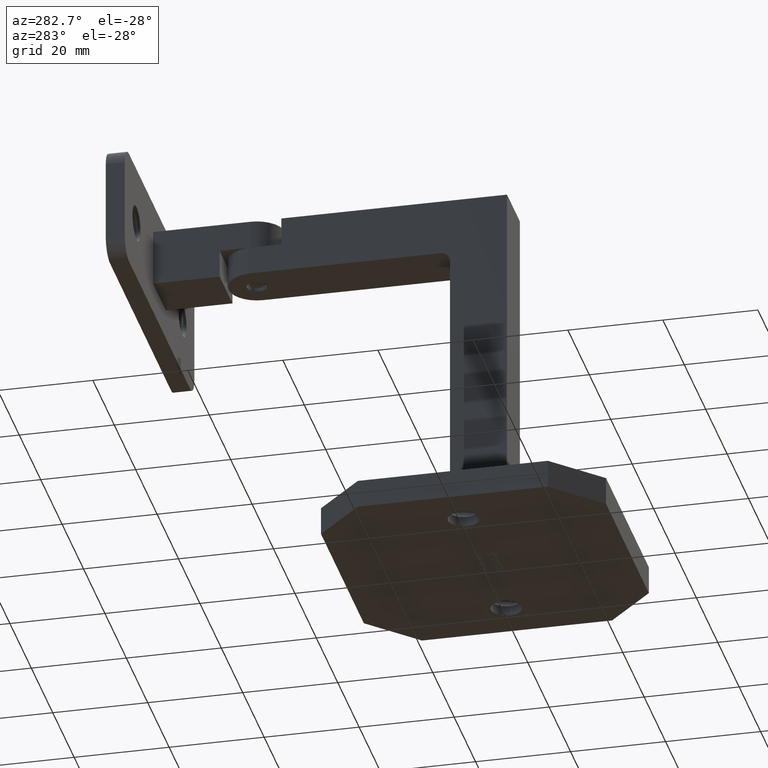
[diagram: clean part render]
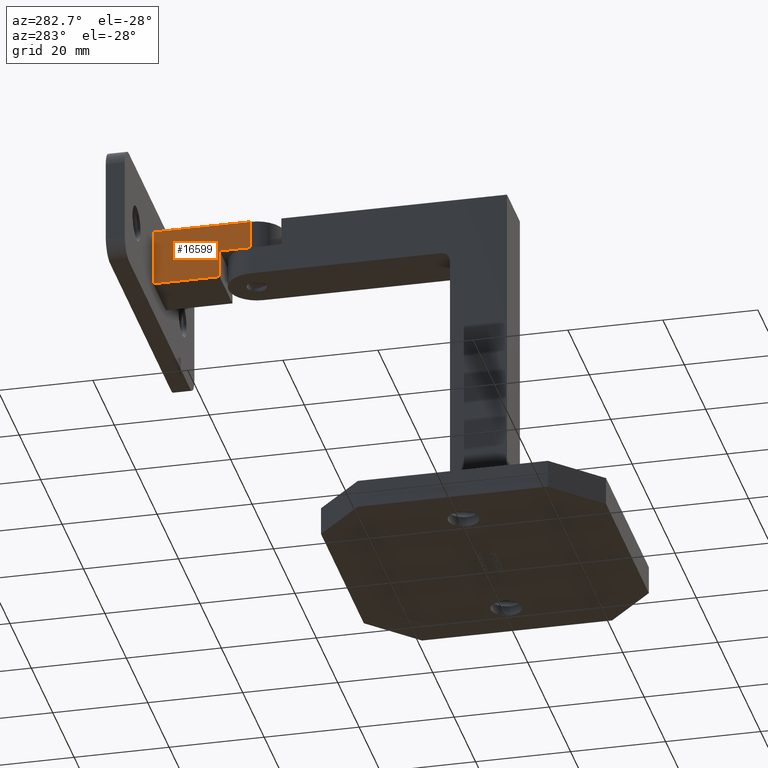
[diagram: same view with one face highlighted and labeled with its STEP entity id]
A machine part, auxiliary view. The second image highlights one B-rep face of the part: STEP entity #16599.
In plain terms, the highlighted planar face has unit normal (1, 0, 0).
Its self-contained STEP definition (entity closure, byte-faithful):
#8 = VECTOR ( 'NONE', #21522, 1000.000000000000000 ) ;
#1086 = EDGE_CURVE ( 'NONE', #6180, #18769, #15100, .T. ) ;
#1302 = LINE ( 'NONE', #8286, #19304 ) ;
#1315 = DIRECTION ( 'NONE',  ( 1.309225264888156377E-16, -1.000000000000000000, 0.000000000000000000 ) ) ;
#2757 = CARTESIAN_POINT ( 'NONE',  ( -5.999999999999998224, -7.250000000000006217, 6.000000000000005329 ) ) ;
#3091 = CARTESIAN_POINT ( 'NONE',  ( -6.000000000000001776, -0.7500000000000006661, 0.000000000000000000 ) ) ;
#3801 = VERTEX_POINT ( 'NONE', #6882 ) ;
#4182 = LINE ( 'NONE', #10129, #8 ) ;
#4434 = DIRECTION ( 'NONE',  ( -0.000000000000000000, -0.000000000000000000, -1.000000000000000000 ) ) ;
#4444 = EDGE_CURVE ( 'NONE', #8328, #14002, #8105, .T. ) ;
#6013 = CARTESIAN_POINT ( 'NONE',  ( -6.000000000000000888, 13.24999999999999822, 6.000000000000005329 ) ) ;
#6180 = VERTEX_POINT ( 'NONE', #10798 ) ;
#6711 = ORIENTED_EDGE ( 'NONE', *, *, #8343, .T. ) ;
#6882 = CARTESIAN_POINT ( 'NONE',  ( -5.999999999999999112, -0.7500000000000006661, -6.000000000000005329 ) ) ;
#7316 = VECTOR ( 'NONE', #21643, 1000.000000000000000 ) ;
#7586 = CARTESIAN_POINT ( 'NONE',  ( -6.000000000000001776, -0.7500000000000006661, 0.000000000000000000 ) ) ;
#7755 = EDGE_CURVE ( 'NONE', #8328, #17299, #1302, .T. ) ;
#7863 = CARTESIAN_POINT ( 'NONE',  ( -6.000000000000000888, 13.24999999999999822, 6.000000000000005329 ) ) ;
#8105 = LINE ( 'NONE', #14901, #22465 ) ;
#8286 = CARTESIAN_POINT ( 'NONE',  ( -6.000000000000000888, 13.24999999999999822, 6.000000000000005329 ) ) ;
#8328 = VERTEX_POINT ( 'NONE', #7863 ) ;
#8343 = EDGE_CURVE ( 'NONE', #17299, #3801, #24366, .T. ) ;
#8831 = ORIENTED_EDGE ( 'NONE', *, *, #20085, .T. ) ;
#9292 = ORIENTED_EDGE ( 'NONE', *, *, #4444, .F. ) ;
#9823 = ORIENTED_EDGE ( 'NONE', *, *, #7755, .T. ) ;
#10129 = CARTESIAN_POINT ( 'NONE',  ( -6.000000000000001776, -0.7500000000000006661, 0.000000000000000000 ) ) ;
#10688 = FACE_OUTER_BOUND ( 'NONE', #15435, .T. ) ;
#10798 = CARTESIAN_POINT ( 'NONE',  ( -5.999999999999999112, -7.249999999999999112, 0.000000000000000000 ) ) ;
#12378 = LINE ( 'NONE', #23564, #7316 ) ;
#14002 = VERTEX_POINT ( 'NONE', #2757 ) ;
#14831 = DIRECTION ( 'NONE',  ( -3.469446951953614189E-16, 1.000000000000000000, -0.000000000000000000 ) ) ;
#14901 = CARTESIAN_POINT ( 'NONE',  ( -6.000000000000000888, 13.24999999999999822, 6.000000000000005329 ) ) ;
#15100 = LINE ( 'NONE', #3091, #19903 ) ;
#15435 = EDGE_LOOP ( 'NONE', ( #17379, #8831, #9292, #9823, #6711, #15906 ) ) ;
#15866 = AXIS2_PLACEMENT_3D ( 'NONE', #6013, #19584, #17675 ) ;
#15906 = ORIENTED_EDGE ( 'NONE', *, *, #21932, .F. ) ;
#16599 = ADVANCED_FACE ( 'NONE', ( #10688 ), #17510, .F. ) ;
#17299 = VERTEX_POINT ( 'NONE', #21789 ) ;
#17379 = ORIENTED_EDGE ( 'NONE', *, *, #1086, .F. ) ;
#17510 = PLANE ( 'NONE',  #15866 ) ;
#17675 = DIRECTION ( 'NONE',  ( -1.309225264888156377E-16, 1.000000000000000000, 0.000000000000000000 ) ) ;
#18769 = VERTEX_POINT ( 'NONE', #7586 ) ;
#19282 = VECTOR ( 'NONE', #19839, 1000.000000000000000 ) ;
#19304 = VECTOR ( 'NONE', #4434, 1000.000000000000000 ) ;
#19430 = CARTESIAN_POINT ( 'NONE',  ( -6.000000000000000888, 13.24999999999999822, -6.000000000000005329 ) ) ;
#19584 = DIRECTION ( 'NONE',  ( 1.000000000000000000, 1.309225264888156377E-16, -0.000000000000000000 ) ) ;
#19839 = DIRECTION ( 'NONE',  ( 1.309225264888156377E-16, -1.000000000000000000, 0.000000000000000000 ) ) ;
#19903 = VECTOR ( 'NONE', #14831, 1000.000000000000000 ) ;
#20085 = EDGE_CURVE ( 'NONE', #6180, #14002, #12378, .T. ) ;
#21522 = DIRECTION ( 'NONE',  ( -0.000000000000000000, -0.000000000000000000, -1.000000000000000000 ) ) ;
#21643 = DIRECTION ( 'NONE',  ( 0.000000000000000000, -0.000000000000000000, 1.000000000000000000 ) ) ;
#21789 = CARTESIAN_POINT ( 'NONE',  ( -6.000000000000000888, 13.24999999999999822, -6.000000000000005329 ) ) ;
#21932 = EDGE_CURVE ( 'NONE', #18769, #3801, #4182, .T. ) ;
#22465 = VECTOR ( 'NONE', #1315, 1000.000000000000000 ) ;
#23564 = CARTESIAN_POINT ( 'NONE',  ( -5.999999999999998224, -7.250000000000006217, 6.000000000000005329 ) ) ;
#24366 = LINE ( 'NONE', #19430, #19282 ) ;